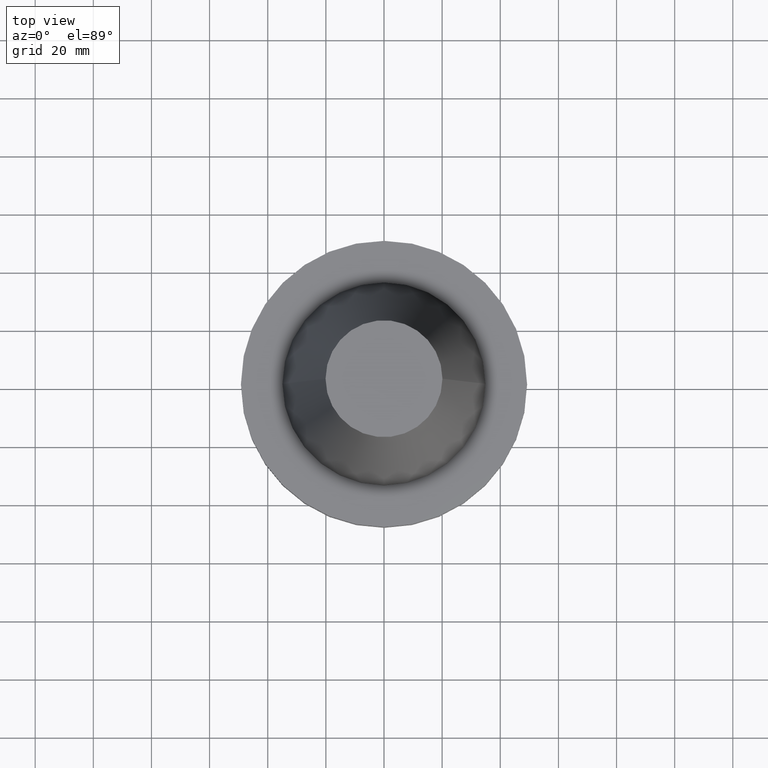
[diagram: clean part render]
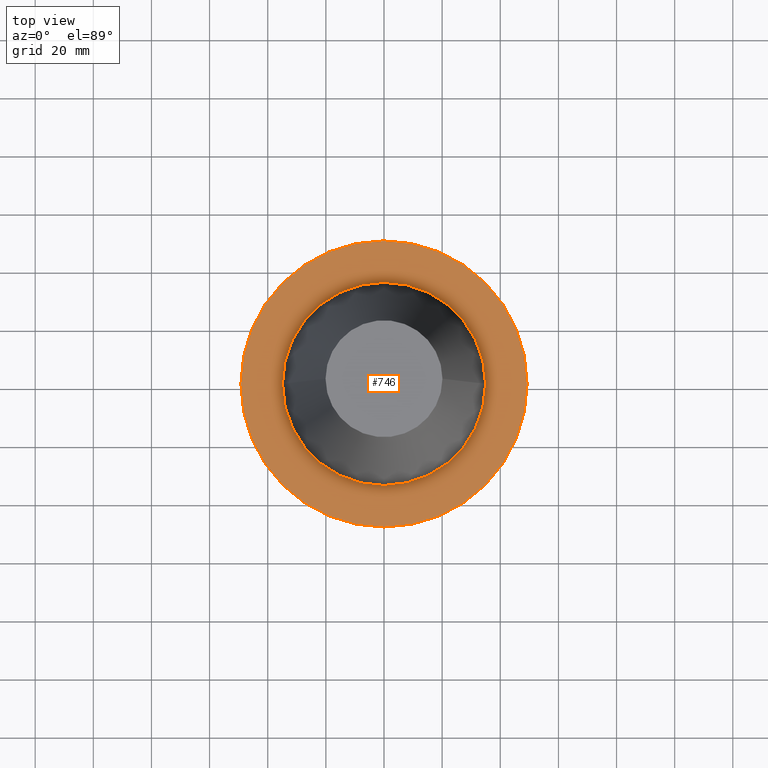
[diagram: same view with one face highlighted and labeled with its STEP entity id]
A machine part, top view. The second image highlights one B-rep face of the part: STEP entity #746.
In plain terms, the highlighted planar face has unit normal (0, 0, -1).
Its self-contained STEP definition (entity closure, byte-faithful):
#6 = DIRECTION ( 'NONE',  ( -0.000000000000000000, -0.000000000000000000, 1.000000000000000000 ) ) ;
#62 = AXIS2_PLACEMENT_3D ( 'NONE', #846, #1000, #314 ) ;
#103 = CARTESIAN_POINT ( 'NONE',  ( -34.92499999999999005, 4.277078946022130098E-15, -1.499999999999987566 ) ) ;
#116 = AXIS2_PLACEMENT_3D ( 'NONE', #306, #652, #939 ) ;
#149 = AXIS2_PLACEMENT_3D ( 'NONE', #461, #6, #150 ) ;
#150 = DIRECTION ( 'NONE',  ( 1.000000000000000000, 0.000000000000000000, 0.000000000000000000 ) ) ;
#166 = CIRCLE ( 'NONE', #994, 49.21499999999999631 ) ;
#176 = EDGE_CURVE ( 'NONE', #444, #386, #464, .T. ) ;
#201 = EDGE_CURVE ( 'NONE', #205, #258, #313, .T. ) ;
#205 = VERTEX_POINT ( 'NONE', #457 ) ;
#258 = VERTEX_POINT ( 'NONE', #475 ) ;
#261 = EDGE_CURVE ( 'NONE', #386, #444, #816, .T. ) ;
#262 = EDGE_LOOP ( 'NONE', ( #923, #715 ) ) ;
#306 = CARTESIAN_POINT ( 'NONE',  ( 0.000000000000000000, 49.21499999999999631, -1.499999999999992895 ) ) ;
#313 = CIRCLE ( 'NONE', #345, 49.21499999999999631 ) ;
#314 = DIRECTION ( 'NONE',  ( 1.000000000000000000, 0.000000000000000000, 0.000000000000000000 ) ) ;
#323 = EDGE_CURVE ( 'NONE', #258, #205, #166, .T. ) ;
#345 = AXIS2_PLACEMENT_3D ( 'NONE', #553, #781, #611 ) ;
#355 = CARTESIAN_POINT ( 'NONE',  ( 34.92499999999999005, 0.000000000000000000, -1.499999999999987566 ) ) ;
#386 = VERTEX_POINT ( 'NONE', #103 ) ;
#388 = FACE_BOUND ( 'NONE', #262, .T. ) ;
#444 = VERTEX_POINT ( 'NONE', #355 ) ;
#457 = CARTESIAN_POINT ( 'NONE',  ( -49.21499999999999631, 6.027099222003697826E-15, -1.499999999999987566 ) ) ;
#461 = CARTESIAN_POINT ( 'NONE',  ( 0.000000000000000000, 0.000000000000000000, -1.499999999999987566 ) ) ;
#464 = CIRCLE ( 'NONE', #62, 34.92499999999999005 ) ;
#475 = CARTESIAN_POINT ( 'NONE',  ( 49.21499999999999631, 0.000000000000000000, -1.499999999999987566 ) ) ;
#538 = EDGE_LOOP ( 'NONE', ( #830, #543 ) ) ;
#543 = ORIENTED_EDGE ( 'NONE', *, *, #201, .T. ) ;
#553 = CARTESIAN_POINT ( 'NONE',  ( 0.000000000000000000, 0.000000000000000000, -1.499999999999987566 ) ) ;
#557 = DIRECTION ( 'NONE',  ( -0.000000000000000000, -0.000000000000000000, 1.000000000000000000 ) ) ;
#611 = DIRECTION ( 'NONE',  ( 1.000000000000000000, 0.000000000000000000, 0.000000000000000000 ) ) ;
#626 = PLANE ( 'NONE',  #116 ) ;
#652 = DIRECTION ( 'NONE',  ( 0.000000000000000000, 0.000000000000000000, -1.000000000000000000 ) ) ;
#697 = CARTESIAN_POINT ( 'NONE',  ( 0.000000000000000000, 0.000000000000000000, -1.499999999999987566 ) ) ;
#701 = FACE_OUTER_BOUND ( 'NONE', #538, .T. ) ;
#715 = ORIENTED_EDGE ( 'NONE', *, *, #261, .F. ) ;
#746 = ADVANCED_FACE ( 'NONE', ( #388, #701 ), #626, .F. ) ;
#781 = DIRECTION ( 'NONE',  ( -0.000000000000000000, -0.000000000000000000, 1.000000000000000000 ) ) ;
#816 = CIRCLE ( 'NONE', #149, 34.92499999999999005 ) ;
#830 = ORIENTED_EDGE ( 'NONE', *, *, #323, .T. ) ;
#846 = CARTESIAN_POINT ( 'NONE',  ( 0.000000000000000000, 0.000000000000000000, -1.499999999999987566 ) ) ;
#923 = ORIENTED_EDGE ( 'NONE', *, *, #176, .F. ) ;
#939 = DIRECTION ( 'NONE',  ( -1.000000000000000000, 0.000000000000000000, -0.000000000000000000 ) ) ;
#961 = DIRECTION ( 'NONE',  ( 1.000000000000000000, 0.000000000000000000, 0.000000000000000000 ) ) ;
#994 = AXIS2_PLACEMENT_3D ( 'NONE', #697, #557, #961 ) ;
#1000 = DIRECTION ( 'NONE',  ( -0.000000000000000000, -0.000000000000000000, 1.000000000000000000 ) ) ;